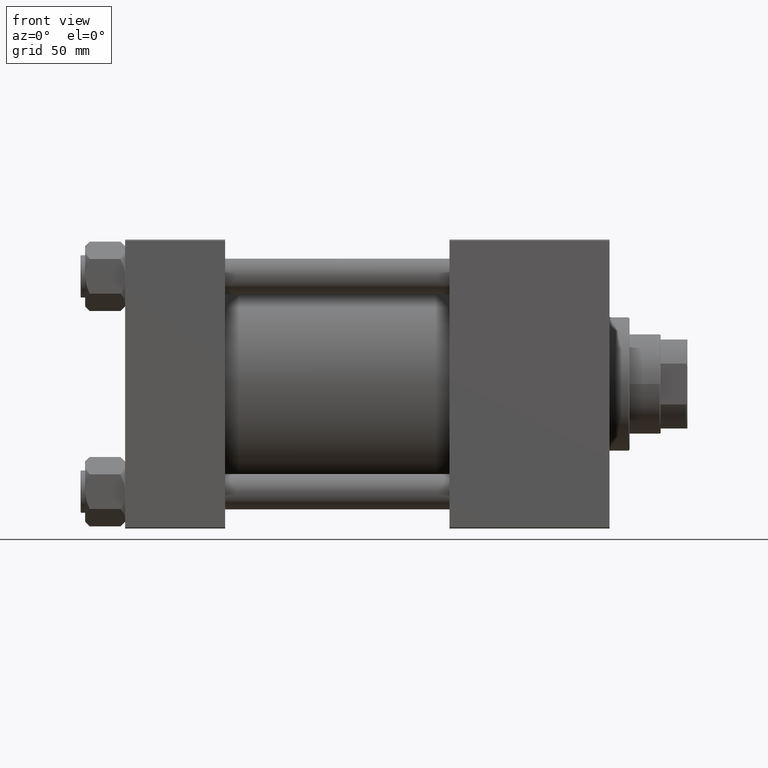
[diagram: clean part render]
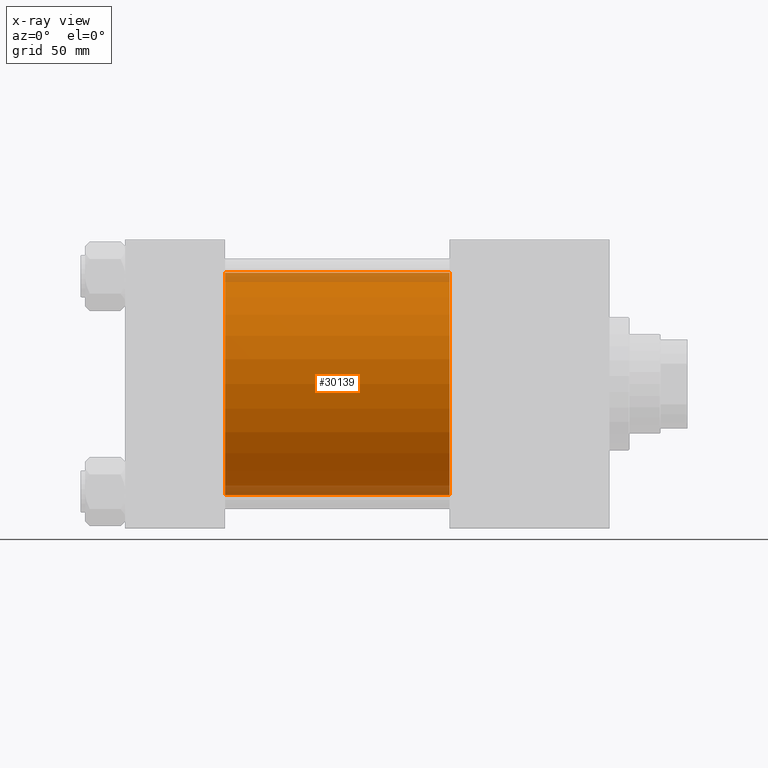
[diagram: x-ray — body ghosted, one internal face saturated and labeled with its STEP entity id]
A machine part, front view, then the same camera in x-ray: the body is ghosted and one INTERNAL B-rep face — a face not visible from any outside direction — is saturated and labeled: STEP entity #30139.
In plain terms, the highlighted cylindrical surface (partial cylindrical patch) has radius 50 mm, axis along (-1, -0, -0).
Its self-contained STEP definition (entity closure, byte-faithful):
#5834 = CARTESIAN_POINT ( 'NONE',  ( 45.00000000000000000, -2.602085213965210642E-15, 50.00000000000000000 ) ) ;
#6297 = DIRECTION ( 'NONE',  ( 1.000000000000000000, 0.000000000000000000, 0.000000000000000000 ) ) ;
#6313 = VERTEX_POINT ( 'NONE', #18154 ) ;
#7479 = EDGE_CURVE ( 'NONE', #49432, #24456, #23091, .T. ) ;
#7482 = DIRECTION ( 'NONE',  ( -1.000000000000000000, -0.000000000000000000, -0.000000000000000000 ) ) ;
#7902 = VECTOR ( 'NONE', #16940, 1000.000000000000000 ) ;
#10835 = FACE_OUTER_BOUND ( 'NONE', #35680, .T. ) ;
#10904 = DIRECTION ( 'NONE',  ( -1.000000000000000000, -0.000000000000000000, -0.000000000000000000 ) ) ;
#13996 = CARTESIAN_POINT ( 'NONE',  ( 146.0000000000000284, -2.602085213965210642E-15, 50.00000000000000000 ) ) ;
#15192 = CARTESIAN_POINT ( 'NONE',  ( 146.0000000000000284, -2.602085213965210642E-15, 0.000000000000000000 ) ) ;
#15370 = DIRECTION ( 'NONE',  ( 1.000000000000000000, 0.000000000000000000, 0.000000000000000000 ) ) ;
#15880 = EDGE_CURVE ( 'NONE', #6313, #49432, #33250, .T. ) ;
#16431 = ORIENTED_EDGE ( 'NONE', *, *, #7479, .F. ) ;
#16861 = AXIS2_PLACEMENT_3D ( 'NONE', #38754, #15370, #27168 ) ;
#16940 = DIRECTION ( 'NONE',  ( -1.000000000000000000, -0.000000000000000000, -0.000000000000000000 ) ) ;
#18154 = CARTESIAN_POINT ( 'NONE',  ( 146.0000000000000284, -2.602085213965210642E-15, 50.00000000000000000 ) ) ;
#18866 = CARTESIAN_POINT ( 'NONE',  ( 45.00000000000000000, 3.521148781771555838E-15, -50.00000000000000000 ) ) ;
#19061 = ORIENTED_EDGE ( 'NONE', *, *, #15880, .F. ) ;
#22529 = EDGE_CURVE ( 'NONE', #39127, #24456, #32333, .T. ) ;
#22645 = CYLINDRICAL_SURFACE ( 'NONE', #26498, 50.00000000000000000 ) ;
#23091 = CIRCLE ( 'NONE', #23888, 50.00000000000000000 ) ;
#23888 = AXIS2_PLACEMENT_3D ( 'NONE', #29662, #6297, #25549 ) ;
#24321 = ORIENTED_EDGE ( 'NONE', *, *, #22529, .T. ) ;
#24456 = VERTEX_POINT ( 'NONE', #18866 ) ;
#25549 = DIRECTION ( 'NONE',  ( 0.000000000000000000, 0.000000000000000000, -1.000000000000000000 ) ) ;
#26498 = AXIS2_PLACEMENT_3D ( 'NONE', #15192, #7482, #38067 ) ;
#27168 = DIRECTION ( 'NONE',  ( 0.000000000000000000, 0.000000000000000000, -1.000000000000000000 ) ) ;
#28260 = VECTOR ( 'NONE', #10904, 1000.000000000000000 ) ;
#29662 = CARTESIAN_POINT ( 'NONE',  ( 45.00000000000000000, -2.602085213965210642E-15, 0.000000000000000000 ) ) ;
#30139 = ADVANCED_FACE ( 'NONE', ( #10835 ), #22645, .F. ) ;
#30822 = ORIENTED_EDGE ( 'NONE', *, *, #35207, .T. ) ;
#31580 = CARTESIAN_POINT ( 'NONE',  ( 146.0000000000000284, 3.521148781771555838E-15, -50.00000000000000000 ) ) ;
#32333 = LINE ( 'NONE', #31580, #7902 ) ;
#33250 = LINE ( 'NONE', #13996, #28260 ) ;
#35207 = EDGE_CURVE ( 'NONE', #6313, #39127, #41481, .T. ) ;
#35680 = EDGE_LOOP ( 'NONE', ( #30822, #24321, #16431, #19061 ) ) ;
#38067 = DIRECTION ( 'NONE',  ( 0.000000000000000000, 0.000000000000000000, 1.000000000000000000 ) ) ;
#38754 = CARTESIAN_POINT ( 'NONE',  ( 146.0000000000000284, -2.602085213965210642E-15, 0.000000000000000000 ) ) ;
#39127 = VERTEX_POINT ( 'NONE', #50005 ) ;
#41481 = CIRCLE ( 'NONE', #16861, 50.00000000000000000 ) ;
#49432 = VERTEX_POINT ( 'NONE', #5834 ) ;
#50005 = CARTESIAN_POINT ( 'NONE',  ( 146.0000000000000284, 3.521148781771555838E-15, -50.00000000000000000 ) ) ;